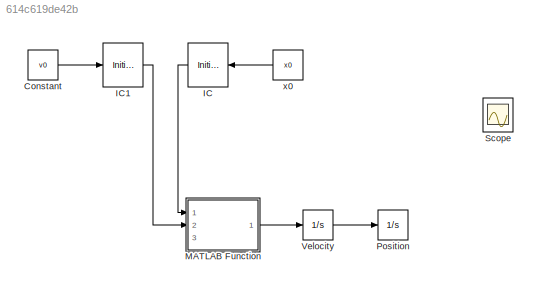
MODEL slx_614c619de42b
KIND model
CONFIG AbsTol = auto
CONFIG EnableMultiTasking = off
CONFIG FixedStep = auto
CONFIG MaxStep = auto
CONFIG MinStep = auto
CONFIG RelTol = 1e-3
CONFIG SampleTimeConstraint = Unconstrained
CONFIG SolverName = VariableStepAuto
CONFIG StartTime = 0.0
CONFIG StopTime = 10.0
BLOCK [Constant] Constant
  Value = v0
BLOCK [InitialCondition] IC
  NameLocation = top
BLOCK [InitialCondition] IC1
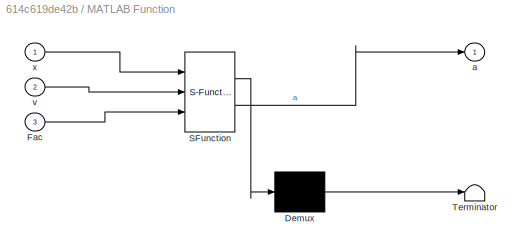
BLOCK [SubSystem] MATLAB Function
  ErrorFcn = Stateflow.Translate.translate
  PermitHierarchicalResolution = ExplicitOnly
  Ports = [3, 1]
  RequestExecContextInheritance = off
  SFBlockType = MATLAB Function
  TreatAsAtomicUnit = on
BLOCK [Demux] MATLAB Function/ Demux 
  Outputs = 1
  Ports = [1, 1]
BLOCK [S-Function] MATLAB Function/ SFunction 
  EnableBusSupport = on
  FunctionName = sf_sfun
  Parameters = B,Mp
  PortCounts = [3 2]
  Ports = [3, 2]
  SFcnIsStateOwnerBlock = off
  SFunctionDeploymentMode = off
  Tag = Stateflow S-Function 2
BLOCK [Terminator] MATLAB Function/ Terminator 
BLOCK [Inport] MATLAB Function/Fac
  Port = 3
BLOCK [Outport] MATLAB Function/a
BLOCK [Inport] MATLAB Function/v
  Port = 2
BLOCK [Inport] MATLAB Function/x
BLOCK [Integrator] Position
  Ports = [1, 1]
BLOCK [Scope] Scope
  Floating = off
  NumInputPorts = 3
  Ports = [3]
  ScopeSpecificationString = Simulink.scopes.TimeScopeBlockCfg('CurrentConfiguration', extmgr.ConfigurationSet(extmgr.Configuration('Core','General UI',true,'FigureColor',[1 1 1]),extmgr.Configuration('Core','Source UI',true),extmgr.Configuration('Sources','WiredSimulink',true),extmgr.Configuration('Visuals','Time Domain',true,'SerializedDisplays',{struct('MinYLimReal','-10','MaxYLimReal','10','YLabelReal','','MinYLimMag','0'...<+1314ch>
BLOCK [Integrator] Velocity
  Ports = [1, 1]
BLOCK [Constant] x0
  NameLocation = top
  Value = x0
LINE Constant:1 -> IC1:1
LINE IC1:1 -> MATLAB Function:2
LINE IC:1 -> MATLAB Function:1
LINE MATLAB Function:1 -> Velocity:1
LINE Velocity:1 -> Position:1
LINE x0:1 -> IC:1
CHART MATLAB Function states=1 transitions=1
  STATE_LABEL 'eML_blk_kernel()'
  STATE_LABEL 'SCRIPT:\nfunction a = fcn(x, v, Mp, B, Fac)\n\na = 1/Mp * (Fac - B*v);'
CHART  states=0 transitions=0
